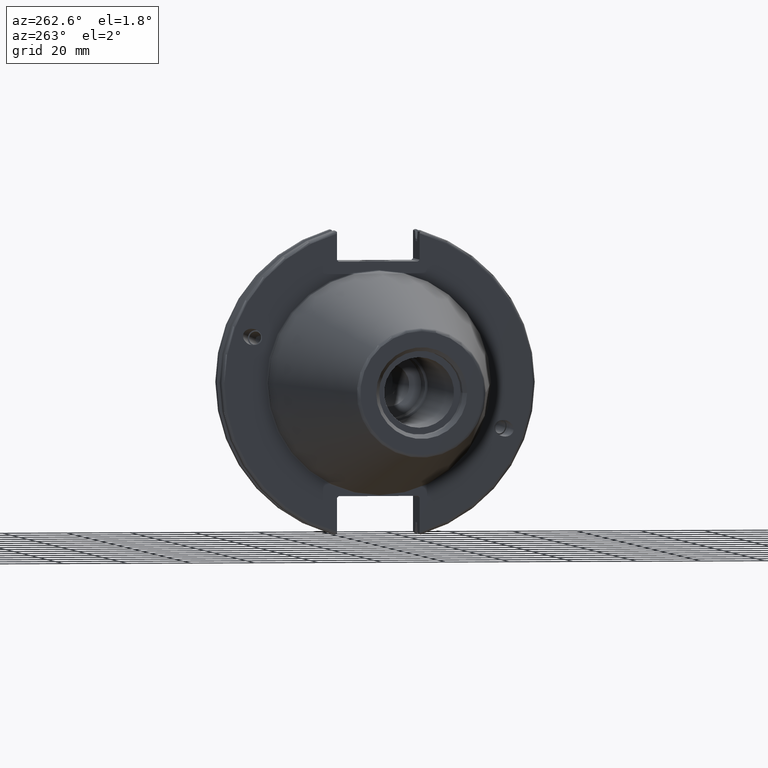
[diagram: clean part render]
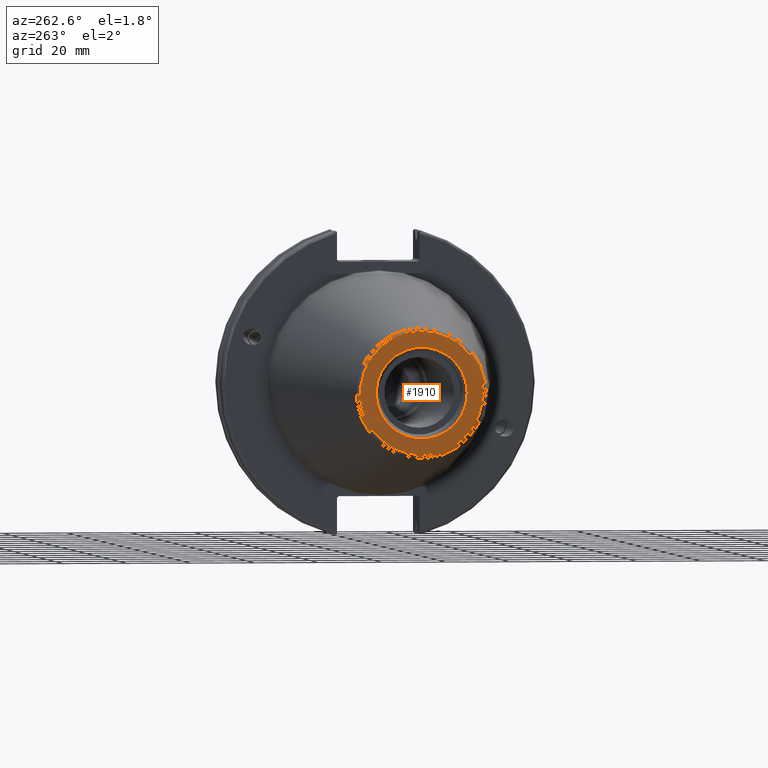
[diagram: same view with one face highlighted and labeled with its STEP entity id]
A machine part, auxiliary view. The second image highlights one B-rep face of the part: STEP entity #1910.
In plain terms, the highlighted planar face has unit normal (-1, 0, 0).
Its self-contained STEP definition (entity closure, byte-faithful):
#53=PLANE('',#2159);
#106=FACE_BOUND('',#370,.T.);
#244=FACE_OUTER_BOUND('',#369,.T.);
#369=EDGE_LOOP('',(#1666));
#370=EDGE_LOOP('',(#1667));
#725=CIRCLE('',#2158,19.2435889303637);
#726=CIRCLE('',#2160,14.2875);
#922=VERTEX_POINT('',#3771);
#923=VERTEX_POINT('',#3775);
#1188=EDGE_CURVE('',#922,#922,#725,.T.);
#1189=EDGE_CURVE('',#923,#923,#726,.T.);
#1666=ORIENTED_EDGE('',*,*,#1188,.F.);
#1667=ORIENTED_EDGE('',*,*,#1189,.T.);
#1910=ADVANCED_FACE('',(#244,#106),#53,.T.);
#2158=AXIS2_PLACEMENT_3D('',#3773,#2681,#2682);
#2159=AXIS2_PLACEMENT_3D('',#3774,#2683,#2684);
#2160=AXIS2_PLACEMENT_3D('',#3776,#2685,#2686);
#2681=DIRECTION('center_axis',(1.,0.,0.));
#2682=DIRECTION('ref_axis',(0.,-1.,1.83697019872103E-16));
#2683=DIRECTION('center_axis',(-1.,0.,0.));
#2684=DIRECTION('ref_axis',(0.,0.,1.));
#2685=DIRECTION('center_axis',(1.,0.,0.));
#2686=DIRECTION('ref_axis',(0.,0.,-1.));
#3771=CARTESIAN_POINT('',(-101.6,-2.35665995876774E-15,19.2435889303637));
#3773=CARTESIAN_POINT('Origin',(-101.6,0.,0.));
#3774=CARTESIAN_POINT('Origin',(-101.6,20.1083333333333,0.));
#3775=CARTESIAN_POINT('',(-101.6,-14.2875,-1.74971411428178E-15));
#3776=CARTESIAN_POINT('Origin',(-101.6,0.,0.));